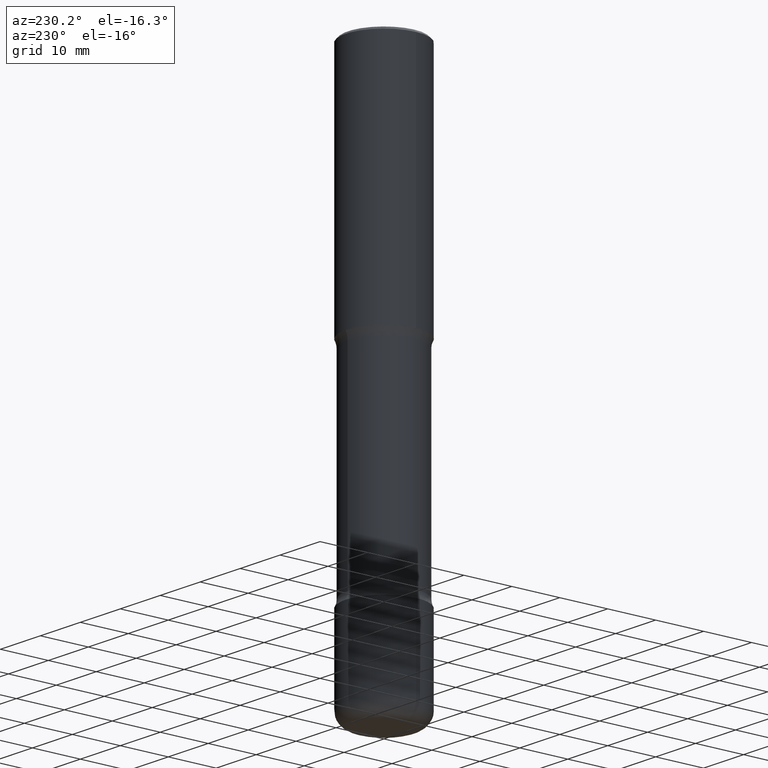
[diagram: clean part render]
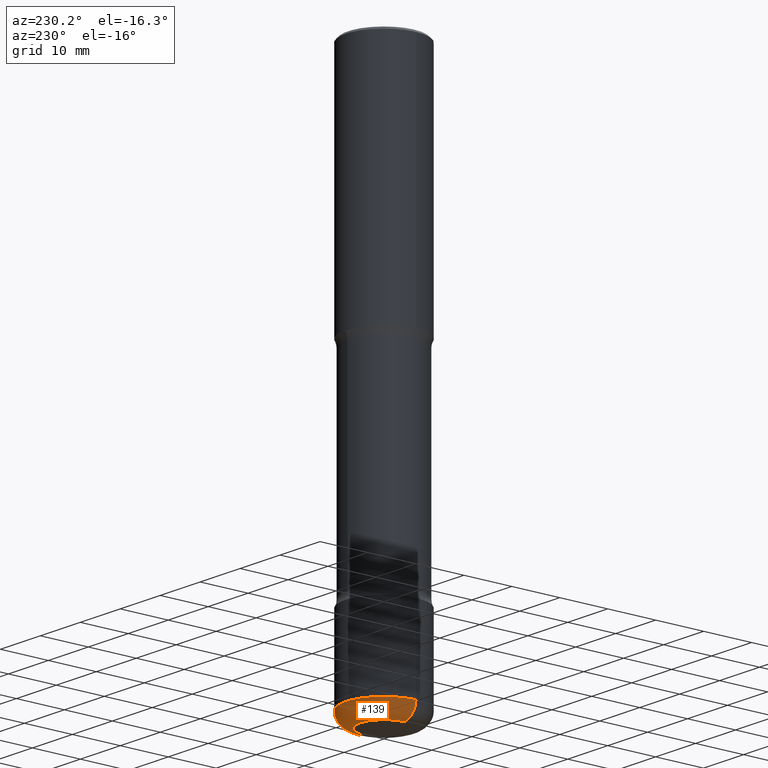
[diagram: same view with one face highlighted and labeled with its STEP entity id]
A machine part, auxiliary view. The second image highlights one B-rep face of the part: STEP entity #139.
In plain terms, the highlighted toroidal blend (fillet) surface has major radius 5 mm and minor (blend) radius 2.9997 mm.
Its self-contained STEP definition (entity closure, byte-faithful):
#2 = CARTESIAN_POINT ( 'NONE',  ( -0.1968500000000003303, -1.378358007587743955E-14, -4.527599999999999625 ) ) ;
#3 = AXIS2_PLACEMENT_3D ( 'NONE', #164, #132, #212 ) ;
#7 = DIRECTION ( 'NONE',  ( 1.000000000000000000, -6.982962677686263555E-15, 0.000000000000000000 ) ) ;
#21 = DIRECTION ( 'NONE',  ( 1.000000000000000000, -6.982962677686258033E-15, 0.000000000000000000 ) ) ;
#41 = VERTEX_POINT ( 'NONE', #116 ) ;
#46 = CARTESIAN_POINT ( 'NONE',  ( 0.1968500000000003303, -1.718262711284876708E-14, -4.527599999999999625 ) ) ;
#66 = CARTESIAN_POINT ( 'NONE',  ( 1.078329470087335798E-28, -1.539568696362884818E-14, -4.409499999999999531 ) ) ;
#90 = CIRCLE ( 'NONE', #543, 0.1968500000000003303 ) ;
#98 = DIRECTION ( 'NONE',  ( 1.000000000000000000, -6.982962677686266711E-15, 0.000000000000000000 ) ) ;
#116 = CARTESIAN_POINT ( 'NONE',  ( 0.3149500000000002853, -1.759497105896613963E-14, -4.409499999999999531 ) ) ;
#132 = DIRECTION ( 'NONE',  ( 7.105427357601001859E-15, 1.000000000000000000, -3.491481338843145583E-15 ) ) ;
#137 = TOROIDAL_SURFACE ( 'NONE', #542, 0.1968500000000003303, 0.1180999999999999966 ) ;
#139 = ADVANCED_FACE ( 'NONE', ( #546 ), #137, .T. ) ;
#143 = DIRECTION ( 'NONE',  ( -2.445468806185136597E-29, 3.491481338843145583E-15, 1.000000000000000000 ) ) ;
#164 = CARTESIAN_POINT ( 'NONE',  ( -0.1968500000000003303, -1.399698358828508961E-14, -4.409499999999999531 ) ) ;
#193 = VERTEX_POINT ( 'NONE', #2 ) ;
#199 = CIRCLE ( 'NONE', #3, 0.1180999999999999689 ) ;
#200 = DIRECTION ( 'NONE',  ( 1.000000000000000000, -6.982962677686263555E-15, 4.883557194083111780E-29 ) ) ;
#205 = CIRCLE ( 'NONE', #350, 0.3149500000000002853 ) ;
#212 = DIRECTION ( 'NONE',  ( -1.000000000000000000, 7.105427357601006592E-15, 0.000000000000000000 ) ) ;
#236 = ORIENTED_EDGE ( 'NONE', *, *, #475, .T. ) ;
#240 = DIRECTION ( 'NONE',  ( -2.445468806185136597E-29, 3.491481338843145583E-15, 1.000000000000000000 ) ) ;
#280 = VERTEX_POINT ( 'NONE', #351 ) ;
#308 = ORIENTED_EDGE ( 'NONE', *, *, #540, .T. ) ;
#314 = VERTEX_POINT ( 'NONE', #46 ) ;
#318 = DIRECTION ( 'NONE',  ( -6.982962677686266711E-15, -1.000000000000000000, 3.491481338843145583E-15 ) ) ;
#321 = ORIENTED_EDGE ( 'NONE', *, *, #496, .F. ) ;
#335 = CARTESIAN_POINT ( 'NONE',  ( 0.1968500000000003303, -1.677028316673139453E-14, -4.409499999999999531 ) ) ;
#350 = AXIS2_PLACEMENT_3D ( 'NONE', #533, #401, #7 ) ;
#351 = CARTESIAN_POINT ( 'NONE',  ( -0.3149500000000002853, -1.315783261735241220E-14, -4.409499999999999531 ) ) ;
#391 = AXIS2_PLACEMENT_3D ( 'NONE', #335, #318, #21 ) ;
#401 = DIRECTION ( 'NONE',  ( -2.445468806185136597E-29, 3.491481338843145583E-15, 1.000000000000000000 ) ) ;
#416 = ORIENTED_EDGE ( 'NONE', *, *, #552, .F. ) ;
#475 = EDGE_CURVE ( 'NONE', #314, #193, #90, .T. ) ;
#496 = EDGE_CURVE ( 'NONE', #41, #280, #205, .T. ) ;
#518 = CIRCLE ( 'NONE', #391, 0.1180999999999999689 ) ;
#527 = EDGE_LOOP ( 'NONE', ( #236, #308, #321, #416 ) ) ;
#532 = CARTESIAN_POINT ( 'NONE',  ( 1.107210456688382298E-28, -1.580803090974622389E-14, -4.527599999999999625 ) ) ;
#533 = CARTESIAN_POINT ( 'NONE',  ( 1.078329470087335798E-28, -1.539568696362884818E-14, -4.409499999999999531 ) ) ;
#540 = EDGE_CURVE ( 'NONE', #193, #280, #199, .T. ) ;
#542 = AXIS2_PLACEMENT_3D ( 'NONE', #66, #240, #200 ) ;
#543 = AXIS2_PLACEMENT_3D ( 'NONE', #532, #143, #98 ) ;
#546 = FACE_OUTER_BOUND ( 'NONE', #527, .T. ) ;
#552 = EDGE_CURVE ( 'NONE', #314, #41, #518, .T. ) ;